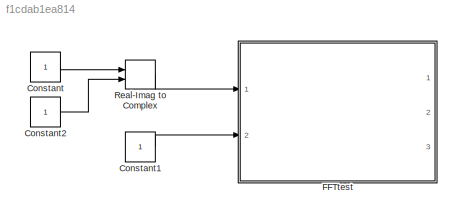
MODEL slx_f1cdab1ea814
KIND model
CONFIG AbsTol = auto
CONFIG EnableMultiTasking = off
CONFIG FixedStep = auto
CONFIG MaxStep = auto
CONFIG MinStep = auto
CONFIG RelTol = 1e-3
CONFIG SampleTimeConstraint = Unconstrained
CONFIG Solver = VariableStepAuto
CONFIG SolverName = VariableStepAuto
CONFIG StartTime = 0.0
CONFIG StopTime = 10.0
BLOCK [Constant] Constant
  OutDataTypeStr = fixdt(1,16,5)
  SampleTime = 0.1
BLOCK [Constant] Constant1
  OutDataTypeStr = boolean
  SampleTime = 0.1
BLOCK [Constant] Constant2
  OutDataTypeStr = fixdt(1,16,5)
  SampleTime = 0.1
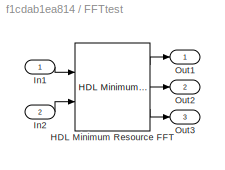
BLOCK [SubSystem] FFTtest
  Ports = [2, 3]
  RequestExecContextInheritance = off
BLOCK [Reference] FFTtest/HDL Minimum Resource FFT  REF=dspobslib/HDL
Minimum Resource
FFT
  Ports = [2, 3]
  SourceBlock = dspobslib/HDL\nMinimum Resource\nFFT
  SourceProductBaseCode = DS
  SourceProductName = DSP System Toolbox
  SourceType = HDL Minimum resource FFT
BLOCK [Inport] FFTtest/In1
  IconDisplay = Port number
BLOCK [Inport] FFTtest/In2
  IconDisplay = Port number
  Port = 2
BLOCK [Outport] FFTtest/Out1
  IconDisplay = Port number
BLOCK [Outport] FFTtest/Out2
  IconDisplay = Port number
  Port = 2
BLOCK [Outport] FFTtest/Out3
  IconDisplay = Port number
  Port = 3
BLOCK [RealImagToComplex] Real-Imag to Complex
  Ports = [2, 1]
LINE Constant1:1 -> FFTtest:2
LINE Constant2:1 -> Real-Imag to Complex:2
LINE Constant:1 -> Real-Imag to Complex:1
LINE FFTtest/HDL Minimum Resource FFT:1 -> FFTtest/Out1:1
LINE FFTtest/HDL Minimum Resource FFT:2 -> FFTtest/Out2:1
LINE FFTtest/HDL Minimum Resource FFT:3 -> FFTtest/Out3:1
LINE FFTtest/In1:1 -> FFTtest/HDL Minimum Resource FFT:1
LINE FFTtest/In2:1 -> FFTtest/HDL Minimum Resource FFT:2
LINE Real-Imag to Complex:1 -> FFTtest:1
